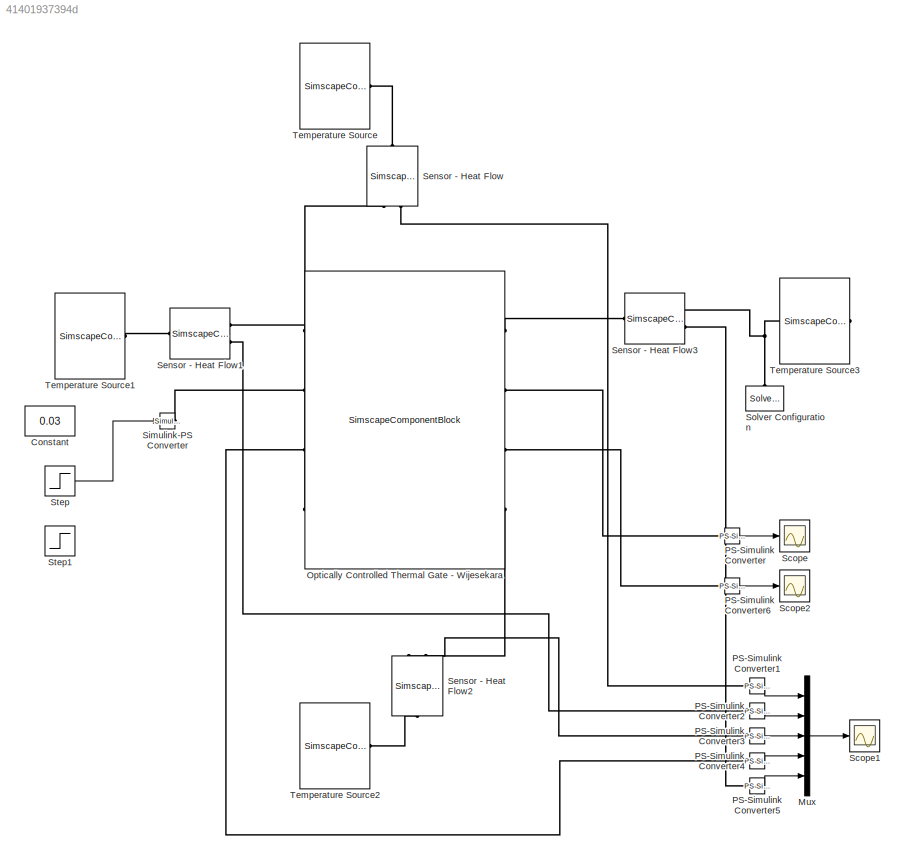
MODEL slx_41401937394d
KIND model
CONFIG AbsTol = auto
CONFIG EnableMultiTasking = off
CONFIG FixedStep = auto
CONFIG MaxStep = auto
CONFIG MinStep = auto
CONFIG RelTol = 1e-3
CONFIG SampleTimeConstraint = Unconstrained
CONFIG SolverName = VariableStepAuto
CONFIG StartTime = 0.0
CONFIG StopTime = 200000
BLOCK [Constant] Constant
  Value = 0.03
BLOCK [Mux] Mux
  DisplayOption = bar
  Inputs = 5
  Ports = [5, 1]
BLOCK [SimscapeComponentBlock] Optically Controlled Thermal Gate - Wijesekara
  ClassName = thermal_optical_gate_Wije
  ComponentPath = thermal_optical_gate_Wije
  ComponentVariantNames = ["thermal_optical_gate_Wije"]
  ComponentVariants = ["thermal_optical_gate_Wije"]
  CopyFcn = simscape.engine.sli.internal.componentblockcallback(gcbh,'COPY')
  InternalSimscapePortConfiguration = {"Bottom":[{"id":"bR","label":"BR","type":"quantum_thermal"}],"Left":[{"id":"bM","label":"BM","type":"quantum_thermal"},{"id":"Om","label":"Om","type":"input"},{"id":"JF","label":"JF","type":"output"}],"Right":[{"id":"gnd","label":"","type":"quantum_thermal"},{"id":"diag","label":"dia","type":"output"},{"id":"ofdiag","label":"ofdia","type":"output"}],"Top":[{"id":"bL","label":"BL","type":"quantum_...<+11ch>
  JL = 0
  JL_nominal_specify = off
  JL_nominal_unit = 1
  JL_nominal_value = 1
  JL_priority = Low
  JL_specify = off
  JL_unit = 1
  JM = 0
  JM_nominal_specify = off
  JM_nominal_unit = 1
  JM_nominal_value = 1
  JM_priority = Low
  JM_specify = off
  JM_unit = 1
  JR = 0
  JR_nominal_specify = off
  JR_nominal_unit = 1
  JR_nominal_value = 1
  JR_priority = Low
  JR_specify = off
  JR_unit = 1
  MaskType = Optically controlled quantum thermal gate
  Ports = [0, 0, 0, 0, 0, 4, 4]
  PreCopyFcn = simscape.engine.sli.internal.componentblockcallback(gcbh,'PRECOPY')
  PreDeleteFcn = simscape.engine.sli.internal.componentblockcallback(gcbh,'PREDELETE')
  SchemaVersion = 1
  SourceFile = thermal_optical_gate_Wije
  TL = 0.2
  TL_nominal_specify = off
  TL_nominal_unit = 1
  TL_nominal_value = 1
  TL_priority = Low
  TL_specify = off
  TL_unit = 1
  TM = 0.2
  TM_nominal_specify = off
  TM_nominal_unit = 1
  TM_nominal_value = 1
  TM_priority = Low
  TM_specify = off
  TM_unit = 1
  TR = 0.2
  TR_nominal_specify = off
  TR_nominal_unit = 1
  TR_nominal_value = 1
  TR_priority = Low
  TR_specify = off
  TR_unit = 1
  kL = 0.01
  kL_conf = compiletime
  kL_unit = 1
  kM = 0.01
  kM_conf = compiletime
  kM_unit = 1
  kR = 0.01
  kR_conf = compiletime
  kR_unit = 1
  p11 = 0
  p11_nominal_specify = off
  p11_nominal_unit = 1
  p11_nominal_value = 1
  p11_priority = High
  p11_specify = off
  p11_unit = 1
  p22 = 0
  p22_nominal_specify = off
  p22_nominal_unit = 1
  p22_nominal_value = 1
  p22_priority = High
  p22_specify = off
  p22_unit = 1
  p33 = 1
  p33_nominal_specify = off
  p33_nominal_unit = 1
  p33_nominal_value = 1
  p33_priority = High
  p33_specify = off
  p33_unit = 1
  p44 = 0
  p44_nominal_specify = off
  p44_nominal_unit = 1
  p44_nominal_value = 1
  p44_priority = High
  p44_specify = off
  p44_unit = 1
  p55 = 0
  p55_nominal_specify = off
  p55_nominal_unit = 1
  p55_nominal_value = 1
  p55_priority = High
  p55_specify = off
  p55_unit = 1
  p66 = 0
  p66_nominal_specify = off
  p66_nominal_unit = 1
  p66_nominal_value = 1
  p66_priority = High
  p66_specify = off
  p66_unit = 1
  p77 = 0
  p77_nominal_specify = off
  p77_nominal_unit = 1
  p77_nominal_value = 1
  p77_priority = High
  p77_specify = off
  p77_unit = 1
  p88 = 0
  p88_nominal_specify = off
  p88_nominal_unit = 1
  p88_nominal_value = 1
  p88_priority = High
  p88_specify = off
  p88_unit = 1
  pi24 = 0
  pi24_nominal_specify = off
  pi24_nominal_unit = 1
  pi24_nominal_value = 1
  pi24_priority = High
  pi24_specify = off
  pi24_unit = 1
  pi42 = 0
  pi42_nominal_specify = off
  pi42_nominal_unit = 1
  pi42_nominal_value = 1
  pi42_priority = High
  pi42_specify = off
  pi42_unit = 1
  pi57 = 0
  pi57_nominal_specify = off
  pi57_nominal_unit = 1
  pi57_nominal_value = 1
  pi57_priority = High
  pi57_specify = off
  pi57_unit = 1
  pi75 = 0
  pi75_nominal_specify = off
  pi75_nominal_unit = 1
  pi75_nominal_value = 1
  pi75_priority = High
  pi75_specify = off
  pi75_unit = 1
  wL = 0.0
  wLM = 1
  wLM_conf = compiletime
  wLM_unit = 1
  wL_conf = compiletime
  wL_unit = 1
  wM = 0.1
  wMR = 1
  wMR_conf = compiletime
  wMR_unit = 1
  wM_conf = compiletime
  wM_unit = 1
  wR = 0.0
  wRL = 0
  wRL_conf = compiletime
  wRL_unit = 1
  wR_conf = compiletime
  wR_unit = 1
BLOCK [Reference] PS-Simulink Converter  REF=nesl_utility/PS-Simulink
Converter
  Ports = [0, 1, 0, 0, 0, 1]
  SourceBlock = nesl_utility/PS-Simulink\nConverter
  SourceProductBaseCode = SS,PW,VE
  SourceType = PS-Simulink\nConverter
BLOCK [Reference] PS-Simulink Converter1  REF=nesl_utility/PS-Simulink
Converter
  Ports = [0, 1, 0, 0, 0, 1]
  SourceBlock = nesl_utility/PS-Simulink\nConverter
  SourceProductBaseCode = SS,PW,VE
  SourceType = PS-Simulink\nConverter
BLOCK [Reference] PS-Simulink Converter2  REF=nesl_utility/PS-Simulink
Converter
  Ports = [0, 1, 0, 0, 0, 1]
  SourceBlock = nesl_utility/PS-Simulink\nConverter
  SourceProductBaseCode = SS,PW,VE
  SourceType = PS-Simulink\nConverter
BLOCK [Reference] PS-Simulink Converter3  REF=nesl_utility/PS-Simulink
Converter
  Ports = [0, 1, 0, 0, 0, 1]
  SourceBlock = nesl_utility/PS-Simulink\nConverter
  SourceProductBaseCode = SS,PW,VE
  SourceType = PS-Simulink\nConverter
BLOCK [Reference] PS-Simulink Converter4  REF=nesl_utility/PS-Simulink
Converter
  Ports = [0, 1, 0, 0, 0, 1]
  SourceBlock = nesl_utility/PS-Simulink\nConverter
  SourceProductBaseCode = SS,PW,VE
  SourceType = PS-Simulink\nConverter
BLOCK [Reference] PS-Simulink Converter5  REF=nesl_utility/PS-Simulink
Converter
  Ports = [0, 1, 0, 0, 0, 1]
  SourceBlock = nesl_utility/PS-Simulink\nConverter
  SourceProductBaseCode = SS,PW,VE
  SourceType = PS-Simulink\nConverter
BLOCK [Reference] PS-Simulink Converter6  REF=nesl_utility/PS-Simulink
Converter
  Ports = [0, 1, 0, 0, 0, 1]
  SourceBlock = nesl_utility/PS-Simulink\nConverter
  SourceProductBaseCode = SS,PW,VE
  SourceType = PS-Simulink\nConverter
BLOCK [Scope] Scope
  Floating = off
  NumInputPorts = 1
  Ports = [1]
  ScopeSpecificationString = Simulink.scopes.TimeScopeBlockCfg('CurrentConfiguration', extmgr.ConfigurationSet(extmgr.Configuration('Core','General UI',true),extmgr.Configuration('Core','Source UI',true),extmgr.Configuration('Sources','WiredSimulink',true),extmgr.Configuration('Visuals','Time Domain',true,'SerializedDisplays',{struct('MinYLimReal','-0.125','MaxYLimReal','1.125','YLabelReal','','MinYLimMag','0.00000','MaxYLimM...<+1948ch>
BLOCK [Scope] Scope1
  Floating = off
  NumInputPorts = 1
  Ports = [1]
  ScopeSpecificationString = Simulink.scopes.TimeScopeBlockCfg('CurrentConfiguration', extmgr.ConfigurationSet(extmgr.Configuration('Core','General UI',true),extmgr.Configuration('Core','Source UI',true),extmgr.Configuration('Sources','WiredSimulink',true,'DataLoggingVariableName','ScopeData1'),extmgr.Configuration('Visuals','Time Domain',true,'SerializedDisplays',{struct('MinYLimReal','-0.00003','MaxYLimReal','0.000034','YLa...<+1894ch>
BLOCK [Scope] Scope2
  Floating = off
  NumInputPorts = 1
  Ports = [1]
  ScopeSpecificationString = Simulink.scopes.TimeScopeBlockCfg('CurrentConfiguration', extmgr.ConfigurationSet(extmgr.Configuration('Core','General UI',true),extmgr.Configuration('Core','Source UI',true),extmgr.Configuration('Sources','WiredSimulink',true,'DataLoggingVariableName','ScopeData2'),extmgr.Configuration('Visuals','Time Domain',true,'SerializedDisplays',{struct('MinYLimReal','-0.00177','MaxYLimReal','0.00177','YLab...<+1823ch>
BLOCK [SimscapeComponentBlock] Sensor - Heat Flow
  ClassName = sensor_heat_flow
  ComponentPath = sensor_heat_flow
  ComponentVariantNames = ["sensor_heat_flow"]
  ComponentVariants = ["sensor_heat_flow"]
  CopyFcn = simscape.engine.sli.internal.componentblockcallback(gcbh,'COPY')
  InternalSimscapePortConfiguration = {"Bottom":[],"Left":[{"id":"inp","label":"","type":"quantum_thermal"}],"Right":[{"id":"out","label":"","type":"quantum_thermal"},{"id":"sense","label":"","type":"output"}],"Top":[]}  <repeated x4 — deduplicated; at blocks: Sensor - Heat Flow, Sensor - Heat Flow1, Sensor - Heat Flow2, Sensor - Heat Flow3>
  J = 0
  J_nominal_specify = off
  J_nominal_unit = 1
  J_nominal_value = 1
  J_priority = None
  J_specify = off
  J_unit = 1
  MaskType = Heat flow rate sensor
  NameLocation = left
  Ports = [0, 0, 0, 0, 0, 1, 2]
  PreCopyFcn = simscape.engine.sli.internal.componentblockcallback(gcbh,'PRECOPY')
  PreDeleteFcn = simscape.engine.sli.internal.componentblockcallback(gcbh,'PREDELETE')
  SchemaVersion = 1
  SourceFile = sensor_heat_flow
BLOCK [SimscapeComponentBlock] Sensor - Heat Flow1
  ClassName = sensor_heat_flow
  ComponentPath = sensor_heat_flow
  ComponentVariantNames = ["sensor_heat_flow"]
  ComponentVariants = ["sensor_heat_flow"]
  CopyFcn = simscape.engine.sli.internal.componentblockcallback(gcbh,'COPY')
  J = 0
  J_nominal_specify = off
  J_nominal_unit = 1
  J_nominal_value = 1
  J_priority = None
  J_specify = off
  J_unit = 1
  MaskType = Heat flow rate sensor
  Ports = [0, 0, 0, 0, 0, 1, 2]
  PreCopyFcn = simscape.engine.sli.internal.componentblockcallback(gcbh,'PRECOPY')
  PreDeleteFcn = simscape.engine.sli.internal.componentblockcallback(gcbh,'PREDELETE')
  SchemaVersion = 1
  SourceFile = sensor_heat_flow
BLOCK [SimscapeComponentBlock] Sensor - Heat Flow2
  ClassName = sensor_heat_flow
  ComponentPath = sensor_heat_flow
  ComponentVariantNames = ["sensor_heat_flow"]
  ComponentVariants = ["sensor_heat_flow"]
  CopyFcn = simscape.engine.sli.internal.componentblockcallback(gcbh,'COPY')
  J = 0
  J_nominal_specify = off
  J_nominal_unit = 1
  J_nominal_value = 1
  J_priority = None
  J_specify = off
  J_unit = 1
  MaskType = Heat flow rate sensor
  NameLocation = right
  Ports = [0, 0, 0, 0, 0, 1, 2]
  PreCopyFcn = simscape.engine.sli.internal.componentblockcallback(gcbh,'PRECOPY')
  PreDeleteFcn = simscape.engine.sli.internal.componentblockcallback(gcbh,'PREDELETE')
  SchemaVersion = 1
  SourceFile = sensor_heat_flow
BLOCK [SimscapeComponentBlock] Sensor - Heat Flow3
  ClassName = sensor_heat_flow
  ComponentPath = sensor_heat_flow
  ComponentVariantNames = ["sensor_heat_flow"]
  ComponentVariants = ["sensor_heat_flow"]
  CopyFcn = simscape.engine.sli.internal.componentblockcallback(gcbh,'COPY')
  J = 0
  J_nominal_specify = off
  J_nominal_unit = 1
  J_nominal_value = 1
  J_priority = None
  J_specify = off
  J_unit = 1
  MaskType = Heat flow rate sensor
  Ports = [0, 0, 0, 0, 0, 1, 2]
  PreCopyFcn = simscape.engine.sli.internal.componentblockcallback(gcbh,'PRECOPY')
  PreDeleteFcn = simscape.engine.sli.internal.componentblockcallback(gcbh,'PREDELETE')
  SchemaVersion = 1
  SourceFile = sensor_heat_flow
BLOCK [Reference] Simulink-PS Converter  REF=nesl_utility/Simulink-PS
Converter
  Ports = [1, 0, 0, 0, 0, 0, 1]
  SourceBlock = nesl_utility/Simulink-PS\nConverter
  SourceProductBaseCode = SS,PW,VE
  SourceType = Simulink-PS\nConverter
BLOCK [Reference] Solver Configuration  REF=nesl_utility/Solver
Configuration
  NameLocation = right
  Ports = [0, 0, 0, 0, 0, 0, 1]
  SourceBlock = nesl_utility/Solver\nConfiguration
  SourceProductBaseCode = SS,PW,VE
  SourceType = Solver\nConfiguration
BLOCK [Step] Step
  After = 0.010
  Before = 0.003
  SampleTime = 0
  Time = 100000
BLOCK [Step] Step1
  After = 0.003
  Before = 0.01
  SampleTime = 0
  Time = 100000
BLOCK [SimscapeComponentBlock] Temperature Source
  ClassName = source_temperature
  ComponentPath = source_temperature
  ComponentVariantNames = ["source_temperature"]
  ComponentVariants = ["source_temperature"]
  CopyFcn = simscape.engine.sli.internal.componentblockcallback(gcbh,'COPY')
  InternalSimscapePortConfiguration = {"Bottom":[],"Left":[],"Right":[{"id":"out","label":"","type":"quantum_thermal"}],"Top":[]}
  J = 0
  J_nominal_specify = off
  J_nominal_unit = 1
  J_nominal_value = 1
  J_priority = None
  J_specify = off
  J_unit = 1
  MaskType = Temperature source
  Ports = [0, 0, 0, 0, 0, 0, 1]
  PreCopyFcn = simscape.engine.sli.internal.componentblockcallback(gcbh,'PRECOPY')
  PreDeleteFcn = simscape.engine.sli.internal.componentblockcallback(gcbh,'PREDELETE')
  SchemaVersion = 1
  SourceFile = source_temperature
  temp = 0.2
  temp_conf = compiletime
  temp_unit = 1
BLOCK [SimscapeComponentBlock] Temperature Source1
  ClassName = source_temperature
  ComponentPath = source_temperature
  ComponentVariantNames = ["source_temperature"]
  ComponentVariants = ["source_temperature"]
  CopyFcn = simscape.engine.sli.internal.componentblockcallback(gcbh,'COPY')
  InternalSimscapePortConfiguration = {"Bottom":[],"Left":[],"Right":[{"id":"out","label":"","type":"quantum_thermal"}],"Top":[]}
  J = 0
  J_nominal_specify = off
  J_nominal_unit = 1
  J_nominal_value = 1
  J_priority = None
  J_specify = off
  J_unit = 1
  MaskType = Temperature source
  Ports = [0, 0, 0, 0, 0, 0, 1]
  PreCopyFcn = simscape.engine.sli.internal.componentblockcallback(gcbh,'PRECOPY')
  PreDeleteFcn = simscape.engine.sli.internal.componentblockcallback(gcbh,'PREDELETE')
  SchemaVersion = 1
  SourceFile = source_temperature
  temp = 0.02
  temp_conf = compiletime
  temp_unit = 1
BLOCK [SimscapeComponentBlock] Temperature Source2
  ClassName = source_temperature
  ComponentPath = source_temperature
  ComponentVariantNames = ["source_temperature"]
  ComponentVariants = ["source_temperature"]
  CopyFcn = simscape.engine.sli.internal.componentblockcallback(gcbh,'COPY')
  InternalSimscapePortConfiguration = {"Bottom":[],"Left":[],"Right":[{"id":"out","label":"","type":"quantum_thermal"}],"Top":[]}
  J = 0
  J_nominal_specify = off
  J_nominal_unit = 1
  J_nominal_value = 1
  J_priority = None
  J_specify = off
  J_unit = 1
  MaskType = Temperature source
  Ports = [0, 0, 0, 0, 0, 0, 1]
  PreCopyFcn = simscape.engine.sli.internal.componentblockcallback(gcbh,'PRECOPY')
  PreDeleteFcn = simscape.engine.sli.internal.componentblockcallback(gcbh,'PREDELETE')
  SchemaVersion = 1
  SourceFile = source_temperature
  temp = 0.02
  temp_conf = compiletime
  temp_unit = 1
BLOCK [SimscapeComponentBlock] Temperature Source3
  ClassName = source_temperature
  ComponentPath = source_temperature
  ComponentVariantNames = ["source_temperature"]
  ComponentVariants = ["source_temperature"]
  CopyFcn = simscape.engine.sli.internal.componentblockcallback(gcbh,'COPY')
  InternalSimscapePortConfiguration = {"Bottom":[],"Left":[],"Right":[{"id":"out","label":"","type":"quantum_thermal"}],"Top":[]}
  J = 0
  J_nominal_specify = off
  J_nominal_unit = 1
  J_nominal_value = 1
  J_priority = None
  J_specify = off
  J_unit = 1
  MaskType = Temperature source
  NameLocation = top
  Ports = [0, 0, 0, 0, 0, 0, 1]
  PreCopyFcn = simscape.engine.sli.internal.componentblockcallback(gcbh,'PRECOPY')
  PreDeleteFcn = simscape.engine.sli.internal.componentblockcallback(gcbh,'PREDELETE')
  SchemaVersion = 1
  SourceFile = source_temperature
  temp = 0
  temp_conf = compiletime
  temp_unit = 1
LINE Mux:1 -> Scope1:1
LINE PS-Simulink Converter1:1 -> Mux:1
LINE PS-Simulink Converter2:1 -> Mux:2
LINE PS-Simulink Converter3:1 -> Mux:3
LINE PS-Simulink Converter4:1 -> Mux:4
LINE PS-Simulink Converter5:1 -> Mux:5
LINE PS-Simulink Converter6:1 -> Scope2:1
LINE PS-Simulink Converter:1 -> Scope:1
LINE Step:1 -> Simulink-PS Converter:1
PLINE Optically Controlled Thermal Gate - Wijesekara:LConn1 -- Sensor - Heat Flow1:RConn1
PLINE Optically Controlled Thermal Gate - Wijesekara:LConn2 -- Simulink-PS Converter:RConn1
PLINE Optically Controlled Thermal Gate - Wijesekara:LConn3 -- PS-Simulink Converter4:LConn1
PLINE Optically Controlled Thermal Gate - Wijesekara:LConn4 -- Sensor - Heat Flow:RConn1
PLINE Optically Controlled Thermal Gate - Wijesekara:RConn1 -- Sensor - Heat Flow3:LConn1
PLINE Optically Controlled Thermal Gate - Wijesekara:RConn2 -- PS-Simulink Converter:LConn1
PLINE Optically Controlled Thermal Gate - Wijesekara:RConn3 -- PS-Simulink Converter6:LConn1
PLINE Optically Controlled Thermal Gate - Wijesekara:RConn4 -- Sensor - Heat Flow2:RConn1
PLINE PS-Simulink Converter1:LConn1 -- Sensor - Heat Flow:RConn2
PLINE PS-Simulink Converter2:LConn1 -- Sensor - Heat Flow1:RConn2
PLINE PS-Simulink Converter3:LConn1 -- Sensor - Heat Flow2:RConn2
PLINE PS-Simulink Converter5:LConn1 -- Sensor - Heat Flow3:RConn2
PLINE Sensor - Heat Flow1:LConn1 -- Temperature Source1:RConn1
PLINE Sensor - Heat Flow2:LConn1 -- Temperature Source2:RConn1
PNET net1: Sensor - Heat Flow3:RConn1 -- Solver Configuration:RConn1 -- Temperature Source3:RConn1
PLINE Sensor - Heat Flow:LConn1 -- Temperature Source:RConn1
note: PNET lines group multi-terminal physical nets as a canonical sorted terminal list (undirected conserving connections); 2-terminal nets keep the pairwise PLINE form
